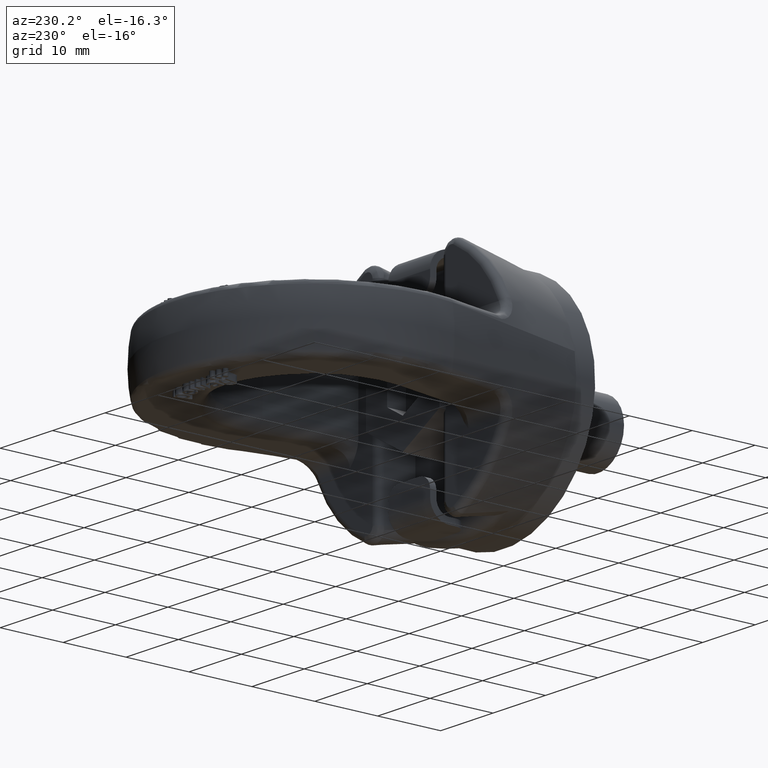
[diagram: clean part render]
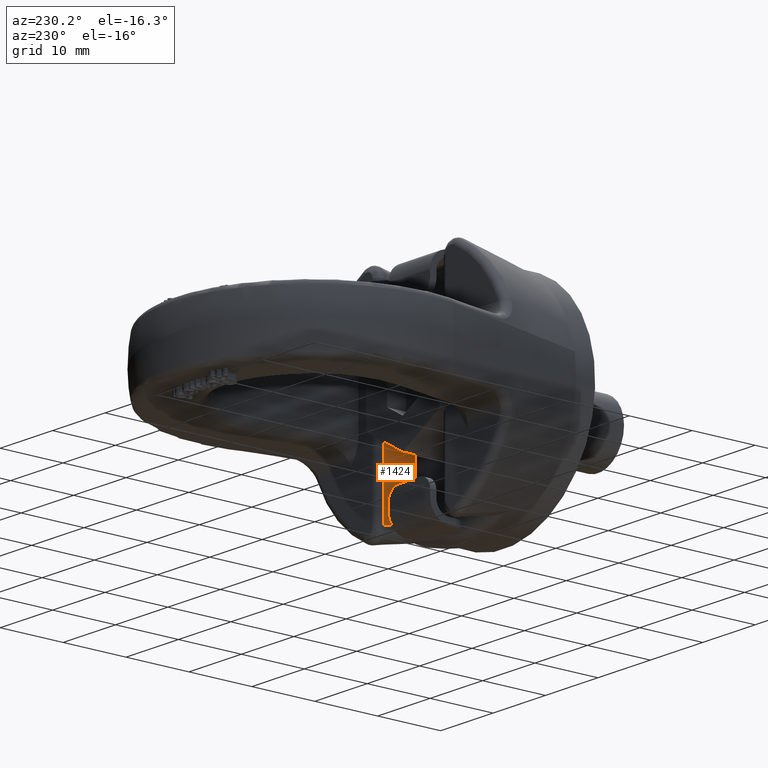
[diagram: same view with one face highlighted and labeled with its STEP entity id]
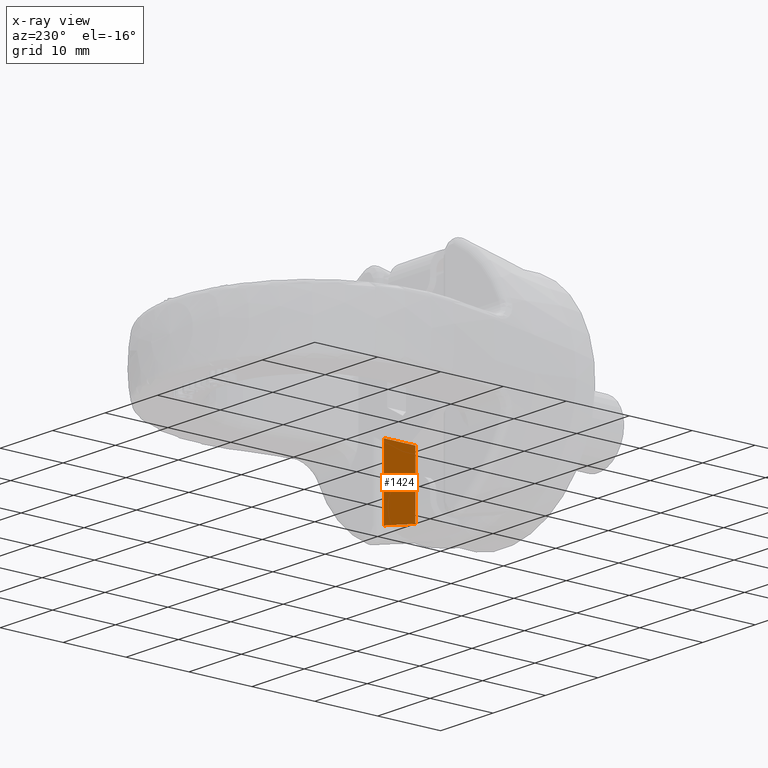
[diagram: x-ray of the same camera — body ghosted, the highlighted face saturated]
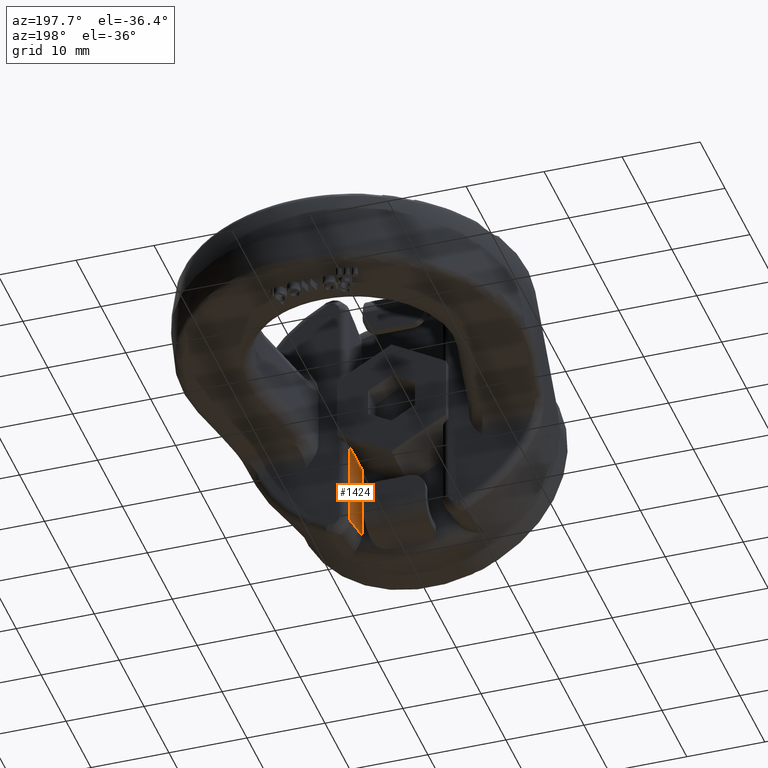
[diagram: same view with one face highlighted and labeled with its STEP entity id]
A machine part, auxiliary view. The second image highlights one B-rep face of the part: STEP entity #1424.
The next image is the same camera in x-ray: the body ghosted, the highlighted face saturated — about 3% of this face is hidden behind the body in this view.
A second angle (auxiliary view) of the same face is appended — the face is thin or edge-on in the first view.
In plain terms, the highlighted planar face has unit normal (-1, 0, -0).
Its self-contained STEP definition (entity closure, byte-faithful):
#1192=FACE_OUTER_BOUND('',#1955,.T.);
#1424=ADVANCED_FACE('',(#1192),#1606,.T.);
#1606=PLANE('',#5226);
#1955=EDGE_LOOP('',(#3312,#3313,#3314,#3315));
#2249=LINE('',#8370,#2553);
#2250=LINE('',#8373,#2554);
#2251=LINE('',#8383,#2555);
#2553=VECTOR('',#5817,1.);
#2554=VECTOR('',#5818,1.);
#2555=VECTOR('',#5819,1.);
#3312=ORIENTED_EDGE('',*,*,#4599,.T.);
#3313=ORIENTED_EDGE('',*,*,#4600,.T.);
#3314=ORIENTED_EDGE('',*,*,#4601,.T.);
#3315=ORIENTED_EDGE('',*,*,#4602,.F.);
#4120=VERTEX_POINT('',#8371);
#4121=VERTEX_POINT('',#8372);
#4122=VERTEX_POINT('',#8374);
#4123=VERTEX_POINT('',#8382);
#4599=EDGE_CURVE('',#4120,#4121,#2249,.T.);
#4600=EDGE_CURVE('',#4121,#4122,#2250,.T.);
#4601=EDGE_CURVE('',#4122,#4123,#4992,.T.);
#4602=EDGE_CURVE('',#4120,#4123,#2251,.T.);
#4992=B_SPLINE_CURVE_WITH_KNOTS('',3,(#8375,#8376,#8377,#8378,#8379,#8380,
#8381),.UNSPECIFIED.,.F.,.F.,(4,3,4),(0.,0.347828353617164,1.),
 .UNSPECIFIED.);
#5226=AXIS2_PLACEMENT_3D('',#8384,#5820,#5821);
#5817=DIRECTION('',(0.,1.,0.));
#5818=DIRECTION('',(2.34291072916505E-15,0.,-1.));
#5819=DIRECTION('',(2.34291072916505E-15,0.,-1.));
#5820=DIRECTION('',(-1.,0.,-2.34291072916505E-15));
#5821=DIRECTION('',(-2.34274405430668E-15,0.,1.));
#8370=CARTESIAN_POINT('',(6.00000000000001,15.,-4.61880215351699));
#8371=CARTESIAN_POINT('',(6.00000000000001,9.,-4.618802153517));
#8372=CARTESIAN_POINT('',(6.00000000000001,14.,-4.61880215351699));
#8373=CARTESIAN_POINT('',(6.00000000000006,14.,-24.75));
#8374=CARTESIAN_POINT('',(6.00000000000004,14.,-15.7164822920663));
#8375=CARTESIAN_POINT('',(6.00000000000004,14.,-15.7164822920663));
#8376=CARTESIAN_POINT('',(6.00000000000004,13.4200726507904,-15.5878673623217));
#8377=CARTESIAN_POINT('',(6.00000000000004,12.8402138352629,-15.4589429606426));
#8378=CARTESIAN_POINT('',(6.00000000000004,12.2604293753088,-15.3296854250395));
#8379=CARTESIAN_POINT('',(6.00000000000003,11.1733447107575,-15.0873300422427));
#8380=CARTESIAN_POINT('',(6.00000000000003,10.0865198141463,-14.8438055386743));
#8381=CARTESIAN_POINT('',(6.00000000000003,9.,-14.5989302787139));
#8382=CARTESIAN_POINT('',(6.00000000000003,9.,-14.5989302787139));
#8383=CARTESIAN_POINT('',(6.00000000000006,9.,-24.75));
#8384=CARTESIAN_POINT('',(6.00000000000006,15.,-24.75));